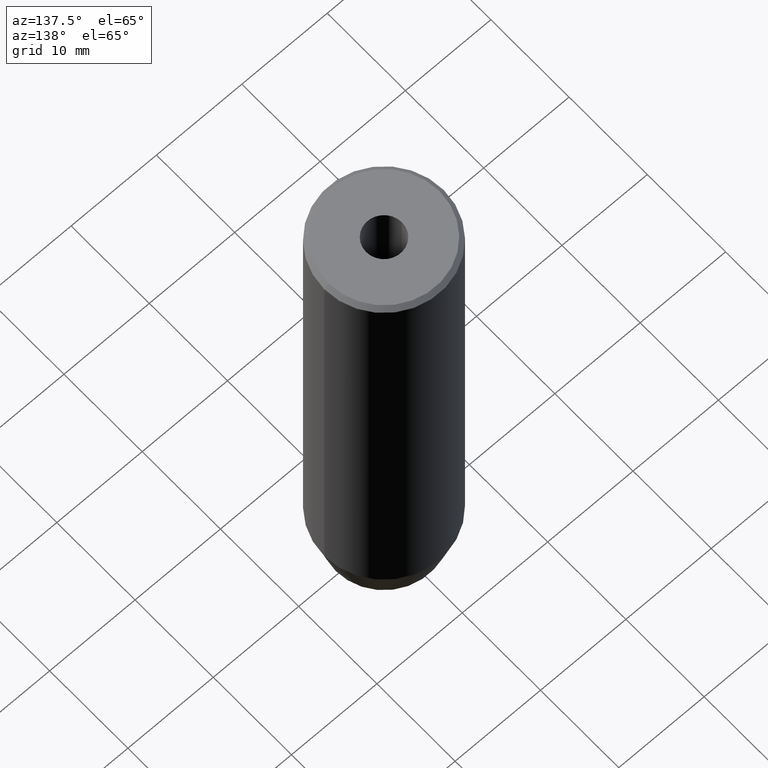
[diagram: clean part render]
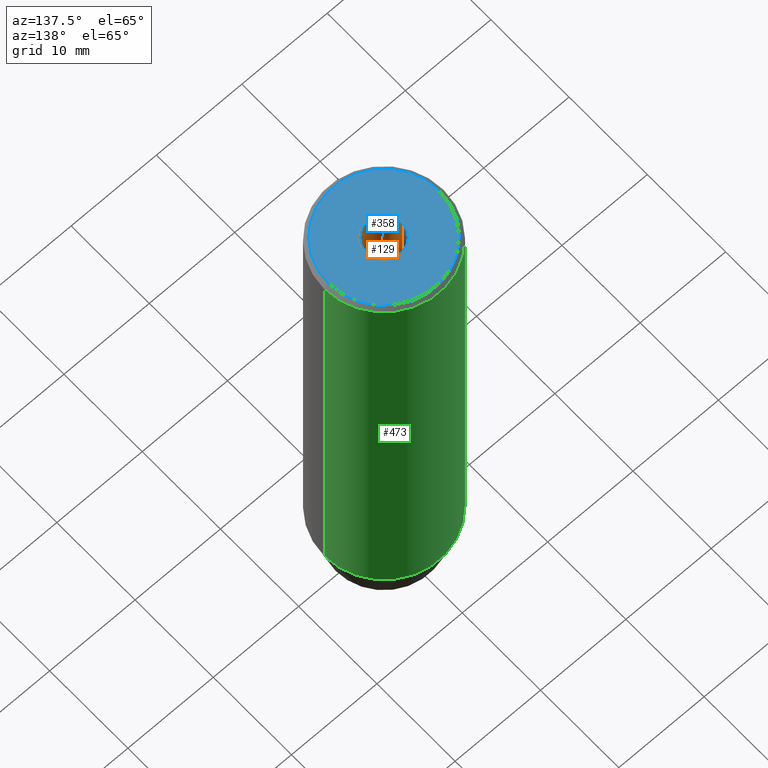
[diagram: same view with three faces highlighted in distinct colors, each labeled with its STEP entity id]
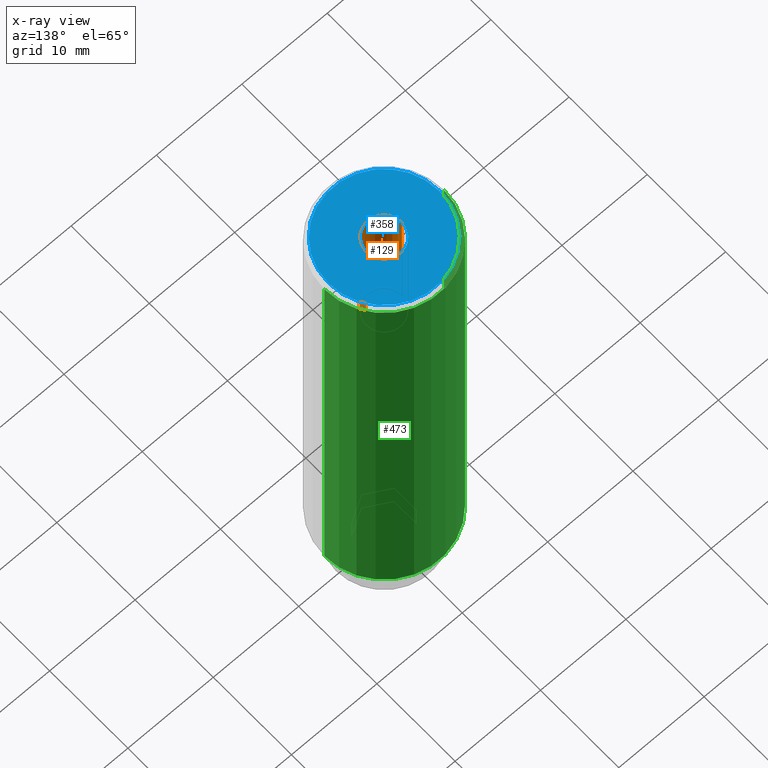
[diagram: x-ray of the same camera — body ghosted, the three highlighted faces saturated]
A machine part, auxiliary view with three faces highlighted in distinct colors.
The next image is the same camera in x-ray (body ghosted, the three faces saturated) — at least one of them is partly hidden behind the body in this view.
Their STEP definitions:

[orange] entity #129 — the highlighted cylindrical surface (edge-blend (fillet) strip) has radius 2.1 mm, axis along (-0, -0, 1).
#9 = EDGE_LOOP ( 'NONE', ( #302, #452, #139, #46 ) ) ;
#28 = CARTESIAN_POINT ( 'NONE',  ( 2.099999999999996980, 0.000000000000000000, -15.00000000000000000 ) ) ;
#35 = CARTESIAN_POINT ( 'NONE',  ( 2.099999999999997868, 0.000000000000000000, 0.000000000000000000 ) ) ;
#37 = VERTEX_POINT ( 'NONE', #556 ) ;
#38 = AXIS2_PLACEMENT_3D ( 'NONE', #395, #474, #210 ) ;
#46 = ORIENTED_EDGE ( 'NONE', *, *, #74, .F. ) ;
#74 = EDGE_CURVE ( 'NONE', #88, #37, #566, .T. ) ;
#79 = DIRECTION ( 'NONE',  ( 1.000000000000000000, 0.000000000000000000, 0.000000000000000000 ) ) ;
#88 = VERTEX_POINT ( 'NONE', #28 ) ;
#97 = CARTESIAN_POINT ( 'NONE',  ( -2.099999999999996980, 2.571758278209438013E-16, -15.00000000000000000 ) ) ;
#103 = DIRECTION ( 'NONE',  ( -0.000000000000000000, -0.000000000000000000, 1.000000000000000000 ) ) ;
#108 = EDGE_CURVE ( 'NONE', #367, #88, #196, .T. ) ;
#129 = ADVANCED_FACE ( 'NONE', ( #353 ), #266, .F. ) ;
#139 = ORIENTED_EDGE ( 'NONE', *, *, #167, .T. ) ;
#167 = EDGE_CURVE ( 'NONE', #179, #37, #576, .T. ) ;
#179 = VERTEX_POINT ( 'NONE', #434 ) ;
#196 = CIRCLE ( 'NONE', #423, 2.099999999999996980 ) ;
#204 = VECTOR ( 'NONE', #103, 1000.000000000000000 ) ;
#210 = DIRECTION ( 'NONE',  ( 1.000000000000000000, 0.000000000000000000, 0.000000000000000000 ) ) ;
#266 = CYLINDRICAL_SURFACE ( 'NONE', #486, 2.099999999999997868 ) ;
#300 = DIRECTION ( 'NONE',  ( -0.000000000000000000, -0.000000000000000000, 1.000000000000000000 ) ) ;
#302 = ORIENTED_EDGE ( 'NONE', *, *, #108, .F. ) ;
#318 = EDGE_CURVE ( 'NONE', #367, #179, #559, .T. ) ;
#345 = DIRECTION ( 'NONE',  ( 1.000000000000000000, 0.000000000000000000, 0.000000000000000000 ) ) ;
#353 = FACE_OUTER_BOUND ( 'NONE', #9, .T. ) ;
#367 = VERTEX_POINT ( 'NONE', #97 ) ;
#388 = DIRECTION ( 'NONE',  ( -0.000000000000000000, -0.000000000000000000, 1.000000000000000000 ) ) ;
#395 = CARTESIAN_POINT ( 'NONE',  ( 0.000000000000000000, 0.000000000000000000, -1.990051048614449116E-16 ) ) ;
#423 = AXIS2_PLACEMENT_3D ( 'NONE', #577, #300, #79 ) ;
#434 = CARTESIAN_POINT ( 'NONE',  ( -2.099999999999998757, 2.571758278209439985E-16, -1.990051048614449116E-16 ) ) ;
#447 = VECTOR ( 'NONE', #388, 1000.000000000000000 ) ;
#452 = ORIENTED_EDGE ( 'NONE', *, *, #318, .T. ) ;
#471 = CARTESIAN_POINT ( 'NONE',  ( 0.000000000000000000, 0.000000000000000000, 0.000000000000000000 ) ) ;
#474 = DIRECTION ( 'NONE',  ( -0.000000000000000000, -0.000000000000000000, 1.000000000000000000 ) ) ;
#486 = AXIS2_PLACEMENT_3D ( 'NONE', #471, #562, #345 ) ;
#505 = CARTESIAN_POINT ( 'NONE',  ( -2.099999999999997868, 2.571758278209438999E-16, 0.000000000000000000 ) ) ;
#556 = CARTESIAN_POINT ( 'NONE',  ( 2.099999999999998757, 0.000000000000000000, -1.990051048614449116E-16 ) ) ;
#559 = LINE ( 'NONE', #505, #204 ) ;
#562 = DIRECTION ( 'NONE',  ( -0.000000000000000000, -0.000000000000000000, 1.000000000000000000 ) ) ;
#566 = LINE ( 'NONE', #35, #447 ) ;
#576 = CIRCLE ( 'NONE', #38, 2.099999999999998757 ) ;
#577 = CARTESIAN_POINT ( 'NONE',  ( 0.000000000000000000, 0.000000000000000000, -15.00000000000000000 ) ) ;

[blue] entity #358 — the highlighted planar face has unit normal (0, -0, 1).
#12 = VERTEX_POINT ( 'NONE', #552 ) ;
#37 = VERTEX_POINT ( 'NONE', #556 ) ;
#38 = AXIS2_PLACEMENT_3D ( 'NONE', #395, #474, #210 ) ;
#42 = EDGE_CURVE ( 'NONE', #440, #12, #72, .T. ) ;
#48 = DIRECTION ( 'NONE',  ( 1.000000000000000000, 0.000000000000000000, 0.000000000000000000 ) ) ;
#66 = DIRECTION ( 'NONE',  ( 1.000000000000000000, 0.000000000000000000, 0.000000000000000000 ) ) ;
#72 = CIRCLE ( 'NONE', #586, 6.499999999999999112 ) ;
#90 = EDGE_LOOP ( 'NONE', ( #226, #546 ) ) ;
#109 = DIRECTION ( 'NONE',  ( -0.000000000000000000, -0.000000000000000000, 1.000000000000000000 ) ) ;
#128 = CARTESIAN_POINT ( 'NONE',  ( 0.000000000000000000, 0.000000000000000000, -1.990051048614449116E-16 ) ) ;
#138 = EDGE_CURVE ( 'NONE', #37, #179, #140, .T. ) ;
#140 = CIRCLE ( 'NONE', #564, 2.099999999999998757 ) ;
#154 = CARTESIAN_POINT ( 'NONE',  ( 0.000000000000000000, 0.000000000000000000, 0.000000000000000000 ) ) ;
#167 = EDGE_CURVE ( 'NONE', #179, #37, #576, .T. ) ;
#175 = DIRECTION ( 'NONE',  ( -0.000000000000000000, -0.000000000000000000, 1.000000000000000000 ) ) ;
#179 = VERTEX_POINT ( 'NONE', #434 ) ;
#200 = DIRECTION ( 'NONE',  ( 0.000000000000000000, -0.000000000000000000, 1.000000000000000000 ) ) ;
#202 = DIRECTION ( 'NONE',  ( 1.000000000000000000, 0.000000000000000000, 0.000000000000000000 ) ) ;
#210 = DIRECTION ( 'NONE',  ( 1.000000000000000000, 0.000000000000000000, 0.000000000000000000 ) ) ;
#211 = CARTESIAN_POINT ( 'NONE',  ( 6.499999999999999112, 8.266365894244633347E-16, 0.000000000000000000 ) ) ;
#226 = ORIENTED_EDGE ( 'NONE', *, *, #138, .F. ) ;
#249 = FACE_OUTER_BOUND ( 'NONE', #265, .T. ) ;
#265 = EDGE_LOOP ( 'NONE', ( #544, #281 ) ) ;
#270 = AXIS2_PLACEMENT_3D ( 'NONE', #549, #200, #66 ) ;
#279 = CIRCLE ( 'NONE', #531, 6.499999999999999112 ) ;
#281 = ORIENTED_EDGE ( 'NONE', *, *, #42, .T. ) ;
#292 = DIRECTION ( 'NONE',  ( 1.000000000000000000, 0.000000000000000000, 0.000000000000000000 ) ) ;
#325 = CARTESIAN_POINT ( 'NONE',  ( 0.000000000000000000, 0.000000000000000000, 0.000000000000000000 ) ) ;
#358 = ADVANCED_FACE ( 'NONE', ( #376, #249 ), #510, .T. ) ;
#376 = FACE_BOUND ( 'NONE', #90, .T. ) ;
#395 = CARTESIAN_POINT ( 'NONE',  ( 0.000000000000000000, 0.000000000000000000, -1.990051048614449116E-16 ) ) ;
#434 = CARTESIAN_POINT ( 'NONE',  ( -2.099999999999998757, 2.571758278209439985E-16, -1.990051048614449116E-16 ) ) ;
#440 = VERTEX_POINT ( 'NONE', #211 ) ;
#474 = DIRECTION ( 'NONE',  ( -0.000000000000000000, -0.000000000000000000, 1.000000000000000000 ) ) ;
#510 = PLANE ( 'NONE',  #270 ) ;
#531 = AXIS2_PLACEMENT_3D ( 'NONE', #325, #540, #48 ) ;
#540 = DIRECTION ( 'NONE',  ( -0.000000000000000000, -0.000000000000000000, 1.000000000000000000 ) ) ;
#544 = ORIENTED_EDGE ( 'NONE', *, *, #571, .T. ) ;
#546 = ORIENTED_EDGE ( 'NONE', *, *, #167, .F. ) ;
#549 = CARTESIAN_POINT ( 'NONE',  ( 0.000000000000000000, 0.000000000000000000, 0.000000000000000000 ) ) ;
#552 = CARTESIAN_POINT ( 'NONE',  ( -6.499999999999999112, 0.000000000000000000, 0.000000000000000000 ) ) ;
#556 = CARTESIAN_POINT ( 'NONE',  ( 2.099999999999998757, 0.000000000000000000, -1.990051048614449116E-16 ) ) ;
#564 = AXIS2_PLACEMENT_3D ( 'NONE', #128, #175, #202 ) ;
#571 = EDGE_CURVE ( 'NONE', #12, #440, #279, .T. ) ;
#576 = CIRCLE ( 'NONE', #38, 2.099999999999998757 ) ;
#586 = AXIS2_PLACEMENT_3D ( 'NONE', #154, #109, #292 ) ;

[green] entity #473 — the highlighted cylindrical surface (partial cylindrical patch) has radius 7 mm, axis along (-0, -0, 1).
#13 = EDGE_CURVE ( 'NONE', #56, #94, #377, .T. ) ;
#27 = DIRECTION ( 'NONE',  ( -0.000000000000000000, -0.000000000000000000, 1.000000000000000000 ) ) ;
#52 = VECTOR ( 'NONE', #283, 1000.000000000000000 ) ;
#56 = VERTEX_POINT ( 'NONE', #438 ) ;
#77 = CARTESIAN_POINT ( 'NONE',  ( 0.000000000000000000, 0.000000000000000000, 0.000000000000000000 ) ) ;
#78 = ORIENTED_EDGE ( 'NONE', *, *, #401, .F. ) ;
#92 = ORIENTED_EDGE ( 'NONE', *, *, #13, .T. ) ;
#94 = VERTEX_POINT ( 'NONE', #398 ) ;
#106 = DIRECTION ( 'NONE',  ( 1.000000000000000000, 0.000000000000000000, 0.000000000000000000 ) ) ;
#107 = LINE ( 'NONE', #291, #52 ) ;
#114 = AXIS2_PLACEMENT_3D ( 'NONE', #77, #27, #437 ) ;
#117 = VERTEX_POINT ( 'NONE', #348 ) ;
#119 = DIRECTION ( 'NONE',  ( 0.000000000000000000, 0.000000000000000000, -1.000000000000000000 ) ) ;
#134 = VECTOR ( 'NONE', #344, 1000.000000000000000 ) ;
#141 = VERTEX_POINT ( 'NONE', #385 ) ;
#144 = EDGE_CURVE ( 'NONE', #141, #117, #406, .T. ) ;
#161 = CARTESIAN_POINT ( 'NONE',  ( 0.000000000000000000, 0.000000000000000000, -0.5000000000000117684 ) ) ;
#189 = ORIENTED_EDGE ( 'NONE', *, *, #373, .T. ) ;
#218 = AXIS2_PLACEMENT_3D ( 'NONE', #416, #460, #106 ) ;
#283 = DIRECTION ( 'NONE',  ( -0.000000000000000000, -0.000000000000000000, 1.000000000000000000 ) ) ;
#291 = CARTESIAN_POINT ( 'NONE',  ( -7.000000000000000000, 8.572527594031473190E-16, 0.000000000000000000 ) ) ;
#293 = LINE ( 'NONE', #383, #134 ) ;
#337 = ORIENTED_EDGE ( 'NONE', *, *, #144, .T. ) ;
#342 = AXIS2_PLACEMENT_3D ( 'NONE', #161, #119, #343 ) ;
#343 = DIRECTION ( 'NONE',  ( 1.000000000000000000, 0.000000000000000000, 0.000000000000000000 ) ) ;
#344 = DIRECTION ( 'NONE',  ( -0.000000000000000000, -0.000000000000000000, 1.000000000000000000 ) ) ;
#348 = CARTESIAN_POINT ( 'NONE',  ( 7.000000000000000000, 0.000000000000000000, -0.5000000000000117684 ) ) ;
#373 = EDGE_CURVE ( 'NONE', #94, #141, #107, .T. ) ;
#377 = CIRCLE ( 'NONE', #218, 7.000000000000000000 ) ;
#383 = CARTESIAN_POINT ( 'NONE',  ( 7.000000000000000000, 0.000000000000000000, 0.000000000000000000 ) ) ;
#385 = CARTESIAN_POINT ( 'NONE',  ( -7.000000000000000000, 8.572527594031473190E-16, -0.5000000000000117684 ) ) ;
#389 = CYLINDRICAL_SURFACE ( 'NONE', #114, 7.000000000000000000 ) ;
#398 = CARTESIAN_POINT ( 'NONE',  ( -7.000000000000000000, 8.572527594031473190E-16, -55.00000000000000000 ) ) ;
#401 = EDGE_CURVE ( 'NONE', #56, #117, #293, .T. ) ;
#406 = CIRCLE ( 'NONE', #342, 7.000000000000000000 ) ;
#416 = CARTESIAN_POINT ( 'NONE',  ( 0.000000000000000000, 0.000000000000000000, -55.00000000000000000 ) ) ;
#437 = DIRECTION ( 'NONE',  ( 1.000000000000000000, 0.000000000000000000, 0.000000000000000000 ) ) ;
#438 = CARTESIAN_POINT ( 'NONE',  ( 7.000000000000000000, 0.000000000000000000, -55.00000000000000000 ) ) ;
#460 = DIRECTION ( 'NONE',  ( -0.000000000000000000, -0.000000000000000000, 1.000000000000000000 ) ) ;
#473 = ADVANCED_FACE ( 'NONE', ( #563 ), #389, .T. ) ;
#479 = EDGE_LOOP ( 'NONE', ( #92, #189, #337, #78 ) ) ;
#563 = FACE_OUTER_BOUND ( 'NONE', #479, .T. ) ;